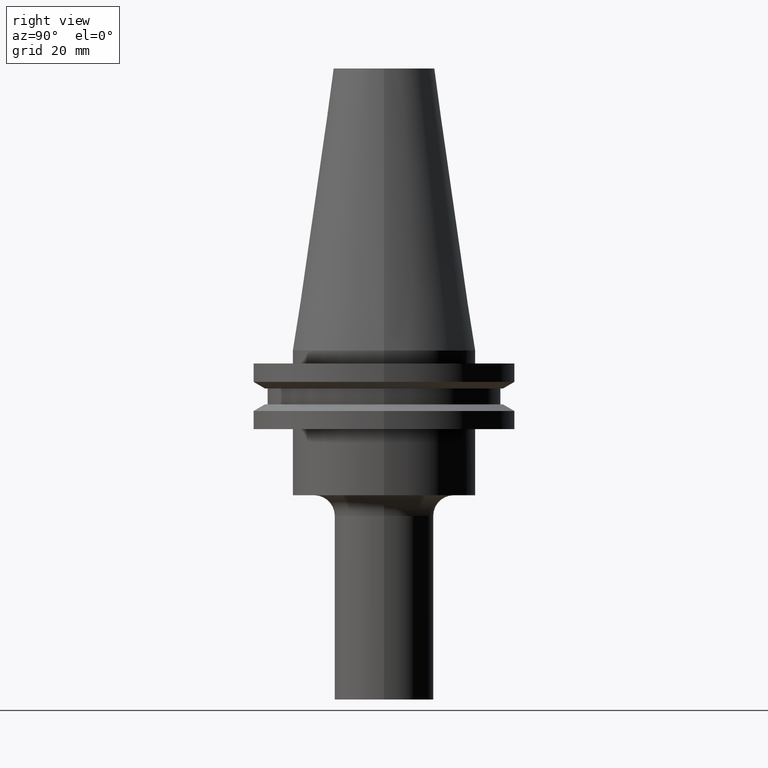
[diagram: clean part render]
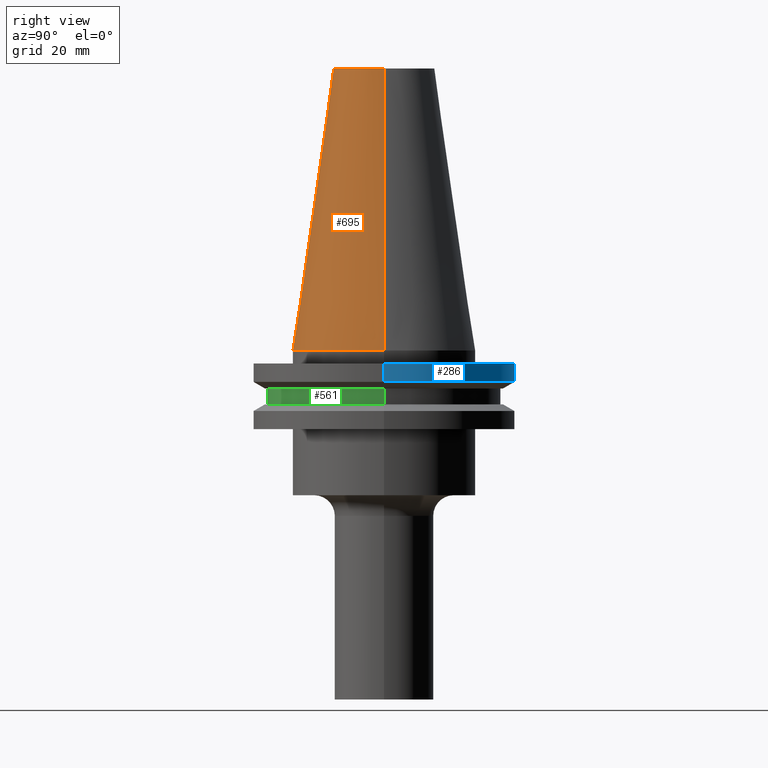
[diagram: same view with three faces highlighted in distinct colors, each labeled with its STEP entity id]
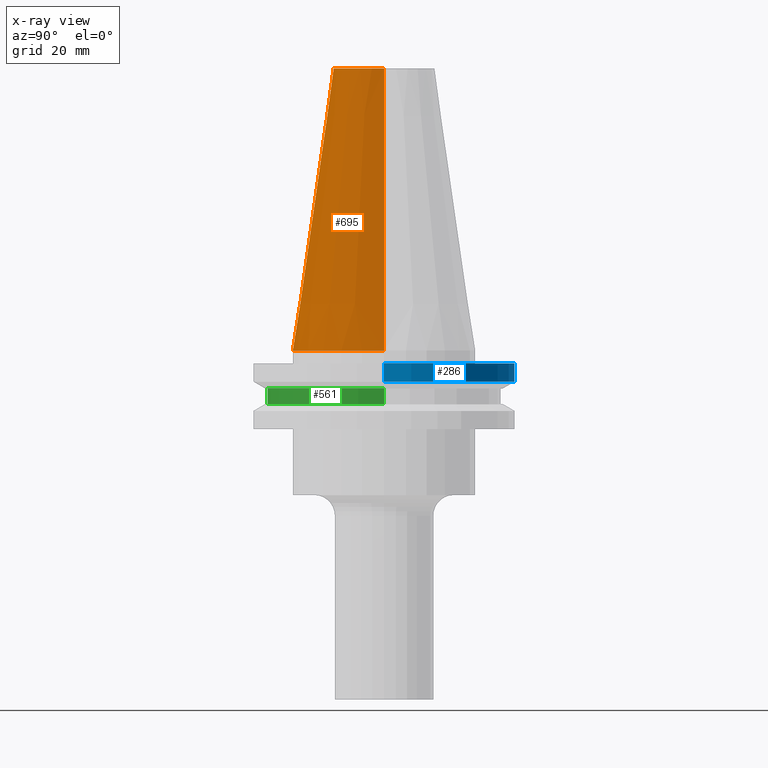
[diagram: x-ray of the same camera — body ghosted, the three highlighted faces saturated]
A machine part, right view with three faces highlighted in distinct colors.
The next image is the same camera in x-ray (body ghosted, the three faces saturated) — at least one of them is partly hidden behind the body in this view.
Their STEP definitions:

[orange] entity #695 — the highlighted conical surface has half-angle 8.297 deg.
#13 = VERTEX_POINT ( 'NONE', #388 ) ;
#20 = CARTESIAN_POINT ( 'NONE',  ( -12.27178102086201150, 0.000000000000000000, 68.25000000000000000 ) ) ;
#24 = EDGE_LOOP ( 'NONE', ( #553, #49, #118, #252 ) ) ;
#49 = ORIENTED_EDGE ( 'NONE', *, *, #573, .F. ) ;
#57 = DIRECTION ( 'NONE',  ( 1.000000000000000000, 0.000000000000000000, 0.000000000000000000 ) ) ;
#118 = ORIENTED_EDGE ( 'NONE', *, *, #517, .T. ) ;
#128 = VECTOR ( 'NONE', #512, 999.9999999999998863 ) ;
#135 = DIRECTION ( 'NONE',  ( 0.1443082272672999711, 1.767266086135276757E-17, -0.9895327864921755756 ) ) ;
#176 = CIRCLE ( 'NONE', #184, 12.27178102086201150 ) ;
#184 = AXIS2_PLACEMENT_3D ( 'NONE', #296, #405, #465 ) ;
#243 = EDGE_CURVE ( 'NONE', #596, #569, #563, .T. ) ;
#252 = ORIENTED_EDGE ( 'NONE', *, *, #611, .T. ) ;
#275 = LINE ( 'NONE', #566, #128 ) ;
#294 = CONICAL_SURFACE ( 'NONE', #775, 22.22500000000000142, 0.1448138465474119174 ) ;
#296 = CARTESIAN_POINT ( 'NONE',  ( 0.000000000000000000, 0.000000000000000000, 68.25000000000000000 ) ) ;
#304 = VERTEX_POINT ( 'NONE', #20 ) ;
#350 = CARTESIAN_POINT ( 'NONE',  ( 0.000000000000000000, 0.000000000000000000, 0.000000000000000000 ) ) ;
#359 = DIRECTION ( 'NONE',  ( -0.000000000000000000, -0.000000000000000000, 1.000000000000000000 ) ) ;
#388 = CARTESIAN_POINT ( 'NONE',  ( -22.22500000000000142, 0.000000000000000000, 0.000000000000000000 ) ) ;
#405 = DIRECTION ( 'NONE',  ( -0.000000000000000000, -0.000000000000000000, 1.000000000000000000 ) ) ;
#413 = CARTESIAN_POINT ( 'NONE',  ( 22.22500000000000142, 2.721777511104992849E-15, 0.000000000000000000 ) ) ;
#414 = VECTOR ( 'NONE', #135, 999.9999999999998863 ) ;
#465 = DIRECTION ( 'NONE',  ( 1.000000000000000000, 0.000000000000000000, 0.000000000000000000 ) ) ;
#509 = AXIS2_PLACEMENT_3D ( 'NONE', #350, #359, #57 ) ;
#512 = DIRECTION ( 'NONE',  ( -0.1443082272672999711, 0.000000000000000000, -0.9895327864921755756 ) ) ;
#517 = EDGE_CURVE ( 'NONE', #304, #13, #275, .T. ) ;
#553 = ORIENTED_EDGE ( 'NONE', *, *, #243, .F. ) ;
#563 = LINE ( 'NONE', #671, #414 ) ;
#566 = CARTESIAN_POINT ( 'NONE',  ( -22.22500000000000142, 0.000000000000000000, 0.000000000000000000 ) ) ;
#569 = VERTEX_POINT ( 'NONE', #413 ) ;
#573 = EDGE_CURVE ( 'NONE', #304, #596, #176, .T. ) ;
#591 = DIRECTION ( 'NONE',  ( -1.000000000000000000, 0.000000000000000000, 0.000000000000000000 ) ) ;
#596 = VERTEX_POINT ( 'NONE', #652 ) ;
#611 = EDGE_CURVE ( 'NONE', #13, #569, #717, .T. ) ;
#634 = DIRECTION ( 'NONE',  ( 0.000000000000000000, 0.000000000000000000, -1.000000000000000000 ) ) ;
#652 = CARTESIAN_POINT ( 'NONE',  ( 12.27178102086201150, 2.112318622904291439E-15, 68.25000000000000000 ) ) ;
#671 = CARTESIAN_POINT ( 'NONE',  ( 22.22500000000000142, 2.721777511104992849E-15, 0.000000000000000000 ) ) ;
#695 = ADVANCED_FACE ( 'NONE', ( #753 ), #294, .T. ) ;
#717 = CIRCLE ( 'NONE', #509, 22.22500000000000142 ) ;
#753 = FACE_OUTER_BOUND ( 'NONE', #24, .T. ) ;
#772 = CARTESIAN_POINT ( 'NONE',  ( 0.000000000000000000, 0.000000000000000000, 0.000000000000000000 ) ) ;
#775 = AXIS2_PLACEMENT_3D ( 'NONE', #772, #634, #591 ) ;

[blue] entity #286 — the highlighted cylindrical surface (partial cylindrical patch) has radius 31.75 mm, axis along (-0, -0, 1).
#1 = EDGE_LOOP ( 'NONE', ( #113, #151, #72, #214 ) ) ;
#11 = EDGE_CURVE ( 'NONE', #377, #290, #146, .T. ) ;
#22 = CARTESIAN_POINT ( 'NONE',  ( 31.75000000000000000, 0.000000000000000000, -3.174999999999997158 ) ) ;
#29 = CARTESIAN_POINT ( 'NONE',  ( 0.000000000000000000, 0.000000000000000000, 68.25000000000000000 ) ) ;
#72 = ORIENTED_EDGE ( 'NONE', *, *, #532, .F. ) ;
#80 = CARTESIAN_POINT ( 'NONE',  ( -31.75000000000000000, 3.888253587292846476E-15, -7.605276606597335842 ) ) ;
#91 = DIRECTION ( 'NONE',  ( -0.000000000000000000, -0.000000000000000000, 1.000000000000000000 ) ) ;
#101 = CARTESIAN_POINT ( 'NONE',  ( 31.75000000000000000, 0.000000000000000000, -7.605276606597335842 ) ) ;
#113 = ORIENTED_EDGE ( 'NONE', *, *, #117, .T. ) ;
#117 = EDGE_CURVE ( 'NONE', #377, #347, #158, .T. ) ;
#146 = LINE ( 'NONE', #684, #244 ) ;
#148 = LINE ( 'NONE', #633, #660 ) ;
#151 = ORIENTED_EDGE ( 'NONE', *, *, #403, .T. ) ;
#158 = CIRCLE ( 'NONE', #421, 31.75000000000000000 ) ;
#208 = AXIS2_PLACEMENT_3D ( 'NONE', #29, #91, #681 ) ;
#214 = ORIENTED_EDGE ( 'NONE', *, *, #11, .F. ) ;
#244 = VECTOR ( 'NONE', #285, 1000.000000000000000 ) ;
#285 = DIRECTION ( 'NONE',  ( -0.000000000000000000, -0.000000000000000000, 1.000000000000000000 ) ) ;
#286 = ADVANCED_FACE ( 'NONE', ( #621 ), #558, .T. ) ;
#290 = VERTEX_POINT ( 'NONE', #22 ) ;
#307 = AXIS2_PLACEMENT_3D ( 'NONE', #348, #768, #590 ) ;
#347 = VERTEX_POINT ( 'NONE', #80 ) ;
#348 = CARTESIAN_POINT ( 'NONE',  ( 0.000000000000000000, 0.000000000000000000, -3.174999999999997158 ) ) ;
#377 = VERTEX_POINT ( 'NONE', #101 ) ;
#392 = DIRECTION ( 'NONE',  ( 1.000000000000000000, 0.000000000000000000, 0.000000000000000000 ) ) ;
#403 = EDGE_CURVE ( 'NONE', #347, #467, #148, .T. ) ;
#421 = AXIS2_PLACEMENT_3D ( 'NONE', #446, #749, #392 ) ;
#446 = CARTESIAN_POINT ( 'NONE',  ( 0.000000000000000000, 0.000000000000000000, -7.605276606597335842 ) ) ;
#459 = CARTESIAN_POINT ( 'NONE',  ( -31.75000000000000000, 3.888253587292846476E-15, -3.174999999999997158 ) ) ;
#467 = VERTEX_POINT ( 'NONE', #459 ) ;
#532 = EDGE_CURVE ( 'NONE', #290, #467, #560, .T. ) ;
#558 = CYLINDRICAL_SURFACE ( 'NONE', #208, 31.75000000000000000 ) ;
#560 = CIRCLE ( 'NONE', #307, 31.75000000000000000 ) ;
#590 = DIRECTION ( 'NONE',  ( 1.000000000000000000, 0.000000000000000000, 0.000000000000000000 ) ) ;
#621 = FACE_OUTER_BOUND ( 'NONE', #1, .T. ) ;
#624 = DIRECTION ( 'NONE',  ( -0.000000000000000000, -0.000000000000000000, 1.000000000000000000 ) ) ;
#633 = CARTESIAN_POINT ( 'NONE',  ( -31.75000000000000000, 3.888253587292846476E-15, 68.25000000000000000 ) ) ;
#660 = VECTOR ( 'NONE', #624, 1000.000000000000000 ) ;
#681 = DIRECTION ( 'NONE',  ( 1.000000000000000000, 0.000000000000000000, 0.000000000000000000 ) ) ;
#684 = CARTESIAN_POINT ( 'NONE',  ( 31.75000000000000000, 0.000000000000000000, 68.25000000000000000 ) ) ;
#749 = DIRECTION ( 'NONE',  ( -0.000000000000000000, -0.000000000000000000, 1.000000000000000000 ) ) ;
#768 = DIRECTION ( 'NONE',  ( -0.000000000000000000, -0.000000000000000000, 1.000000000000000000 ) ) ;

[green] entity #561 — the highlighted cylindrical surface (partial cylindrical patch) has radius 28.18 mm, axis along (-0, -0, 1).
#58 = EDGE_CURVE ( 'NONE', #609, #311, #340, .T. ) ;
#62 = VECTOR ( 'NONE', #755, 1000.000000000000000 ) ;
#68 = AXIS2_PLACEMENT_3D ( 'NONE', #642, #461, #402 ) ;
#100 = ORIENTED_EDGE ( 'NONE', *, *, #424, .F. ) ;
#104 = ORIENTED_EDGE ( 'NONE', *, *, #58, .F. ) ;
#109 = CYLINDRICAL_SURFACE ( 'NONE', #246, 28.17999999999999972 ) ;
#114 = DIRECTION ( 'NONE',  ( -0.000000000000000000, -0.000000000000000000, 1.000000000000000000 ) ) ;
#120 = VECTOR ( 'NONE', #472, 1000.000000000000000 ) ;
#164 = CARTESIAN_POINT ( 'NONE',  ( 28.17999999999999972, 0.000000000000000000, 68.25000000000000000 ) ) ;
#173 = DIRECTION ( 'NONE',  ( 1.000000000000000000, 0.000000000000000000, 0.000000000000000000 ) ) ;
#177 = EDGE_CURVE ( 'NONE', #609, #198, #360, .T. ) ;
#198 = VERTEX_POINT ( 'NONE', #371 ) ;
#199 = EDGE_LOOP ( 'NONE', ( #104, #443, #397, #100 ) ) ;
#233 = LINE ( 'NONE', #164, #120 ) ;
#246 = AXIS2_PLACEMENT_3D ( 'NONE', #710, #114, #173 ) ;
#256 = AXIS2_PLACEMENT_3D ( 'NONE', #268, #504, #455 ) ;
#268 = CARTESIAN_POINT ( 'NONE',  ( 0.000000000000000000, 0.000000000000000000, -9.204999999999991189 ) ) ;
#311 = VERTEX_POINT ( 'NONE', #429 ) ;
#322 = CARTESIAN_POINT ( 'NONE',  ( -28.17999999999999972, 3.451054679997241634E-15, 68.25000000000000000 ) ) ;
#340 = LINE ( 'NONE', #322, #62 ) ;
#360 = CIRCLE ( 'NONE', #68, 28.17999999999999972 ) ;
#371 = CARTESIAN_POINT ( 'NONE',  ( 28.17999999999999972, 0.000000000000000000, -13.05499999999999794 ) ) ;
#397 = ORIENTED_EDGE ( 'NONE', *, *, #541, .T. ) ;
#402 = DIRECTION ( 'NONE',  ( 1.000000000000000000, 0.000000000000000000, 0.000000000000000000 ) ) ;
#404 = VERTEX_POINT ( 'NONE', #440 ) ;
#424 = EDGE_CURVE ( 'NONE', #311, #404, #766, .T. ) ;
#429 = CARTESIAN_POINT ( 'NONE',  ( -28.17999999999999972, 3.451054679997241634E-15, -9.204999999999991189 ) ) ;
#440 = CARTESIAN_POINT ( 'NONE',  ( 28.17999999999999972, 0.000000000000000000, -9.204999999999991189 ) ) ;
#443 = ORIENTED_EDGE ( 'NONE', *, *, #177, .T. ) ;
#455 = DIRECTION ( 'NONE',  ( 1.000000000000000000, 0.000000000000000000, 0.000000000000000000 ) ) ;
#461 = DIRECTION ( 'NONE',  ( -0.000000000000000000, -0.000000000000000000, 1.000000000000000000 ) ) ;
#468 = FACE_OUTER_BOUND ( 'NONE', #199, .T. ) ;
#472 = DIRECTION ( 'NONE',  ( -0.000000000000000000, -0.000000000000000000, 1.000000000000000000 ) ) ;
#504 = DIRECTION ( 'NONE',  ( -0.000000000000000000, -0.000000000000000000, 1.000000000000000000 ) ) ;
#541 = EDGE_CURVE ( 'NONE', #198, #404, #233, .T. ) ;
#561 = ADVANCED_FACE ( 'NONE', ( #468 ), #109, .T. ) ;
#609 = VERTEX_POINT ( 'NONE', #658 ) ;
#642 = CARTESIAN_POINT ( 'NONE',  ( 0.000000000000000000, 0.000000000000000000, -13.05499999999999794 ) ) ;
#658 = CARTESIAN_POINT ( 'NONE',  ( -28.17999999999999972, 3.451054679997241634E-15, -13.05499999999999794 ) ) ;
#710 = CARTESIAN_POINT ( 'NONE',  ( 0.000000000000000000, 0.000000000000000000, 68.25000000000000000 ) ) ;
#755 = DIRECTION ( 'NONE',  ( -0.000000000000000000, -0.000000000000000000, 1.000000000000000000 ) ) ;
#766 = CIRCLE ( 'NONE', #256, 28.17999999999999972 ) ;